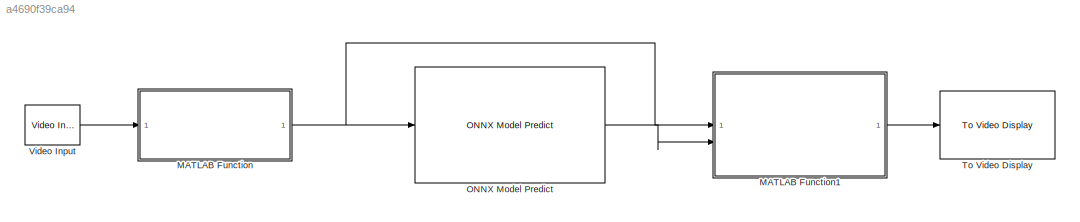
MODEL slx_a4690f39ca94
KIND model
CONFIG AbsTol = auto
CONFIG EnableMultiTasking = on
CONFIG FixedStep = auto
CONFIG MaxStep = auto
CONFIG MinStep = auto
CONFIG RelTol = 1e-3
CONFIG SampleTimeConstraint = Unconstrained
CONFIG SolverName = FixedStepAuto
CONFIG StartTime = 0.0
CONFIG StopTime = inf
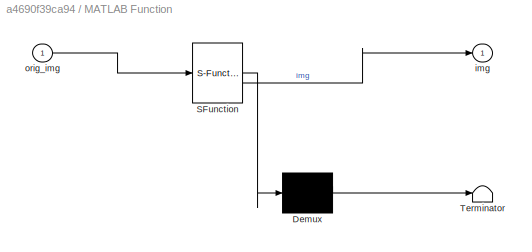
BLOCK [SubSystem] MATLAB Function
  ErrorFcn = Stateflow.Translate.translate
  PermitHierarchicalResolution = ExplicitOnly
  SFBlockType = MATLAB Function
  TreatAsAtomicUnit = on
BLOCK [Demux] MATLAB Function/ Demux 
  Outputs = 1
BLOCK [S-Function] MATLAB Function/ SFunction 
  EnableBusSupport = on
  FunctionName = sf_sfun
  PortCounts = [1 2]
  SFcnIsStateOwnerBlock = off
  SFunctionDeploymentMode = off
  Tag = Stateflow S-Function 2
BLOCK [Terminator] MATLAB Function/ Terminator 
BLOCK [Outport] MATLAB Function/img
BLOCK [Inport] MATLAB Function/orig_img
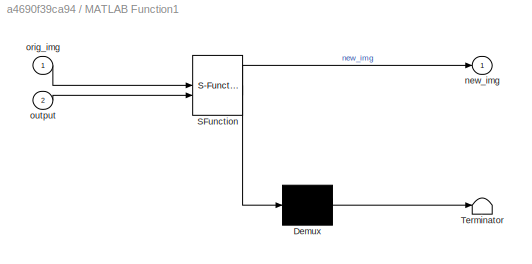
BLOCK [SubSystem] MATLAB Function1
  ErrorFcn = Stateflow.Translate.translate
  PermitHierarchicalResolution = ExplicitOnly
  SFBlockType = MATLAB Function
  TreatAsAtomicUnit = on
BLOCK [Demux] MATLAB Function1/ Demux 
  Outputs = 1
BLOCK [S-Function] MATLAB Function1/ SFunction 
  EnableBusSupport = on
  FunctionName = sf_sfun
  PortCounts = [2 2]
  SFcnIsStateOwnerBlock = off
  SFunctionDeploymentMode = off
  Tag = Stateflow S-Function 1
BLOCK [Terminator] MATLAB Function1/ Terminator 
BLOCK [Outport] MATLAB Function1/new_img
BLOCK [Inport] MATLAB Function1/orig_img
BLOCK [Inport] MATLAB Function1/output
  Port = 2
BLOCK [Reference] ONNX Model Predict  REF=pycoexlib/ONNX Model Predict
  SourceBlock = pycoexlib/ONNX Model Predict
  SourceType = ONNXModelPredict
BLOCK [Reference] To Video Display  REF=visionsinks/To Video Display
  SourceBlock = visionsinks/To Video Display
  SourceType = To Video Display
BLOCK [Reference] Video Input  REF=sldrtlib/Video Input
  AttributesFormatString = Camera [1]
  SourceBlock = sldrtlib/Video Input
  SourceType = Simulink Desktop Real-Time Video Input
LINE MATLAB Function1:1 -> To Video Display:1
NET MATLAB Function:1 -> MATLAB Function1:1, ONNX Model Predict:1
LINE ONNX Model Predict:1 -> MATLAB Function1:2
LINE Video Input:1 -> MATLAB Function:1
note: NET lines group one-source signal fan-out (src -> all destinations, sorted); 1:1 wires keep LINE
CHART MATLAB Function states=1 transitions=1
  STATE_LABEL 'eML_blk_kernel()'
  STATE_LABEL 'SCRIPT:\nfunction img = preProcess(orig_img)\n% 240,320,3\nimg=double(orig_img)/255.0;\n'
CHART MATLAB Function1 states=1 transitions=1
  STATE_LABEL 'eML_blk_kernel()'
  STATE_LABEL "SCRIPT:\nfunction new_img = postProcess(orig_img,output)\n\n    orig_img = permute(orig_img,[3,1,2]);\n    c = orig_img(1,:,:)+output;\n    orig_img(1,:,:) = c./max(c,[],'all');\n\n    orig_img = permute(orig_img,[2,3,1]);\n    new_img = uint8(round(orig_img*255));"
CHART  states=0 transitions=0
CHART  states=0 transitions=0
